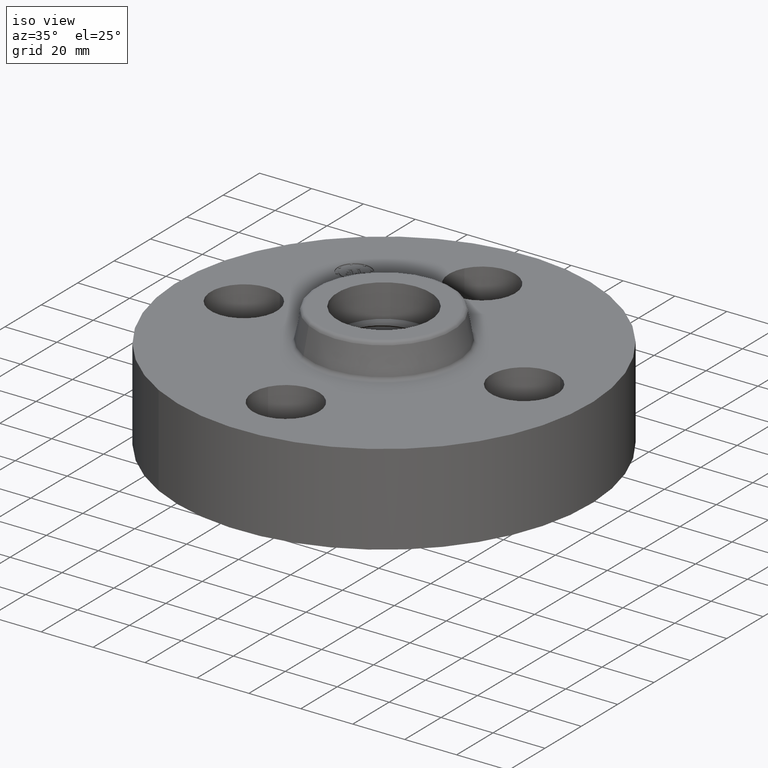
[diagram: clean part render]
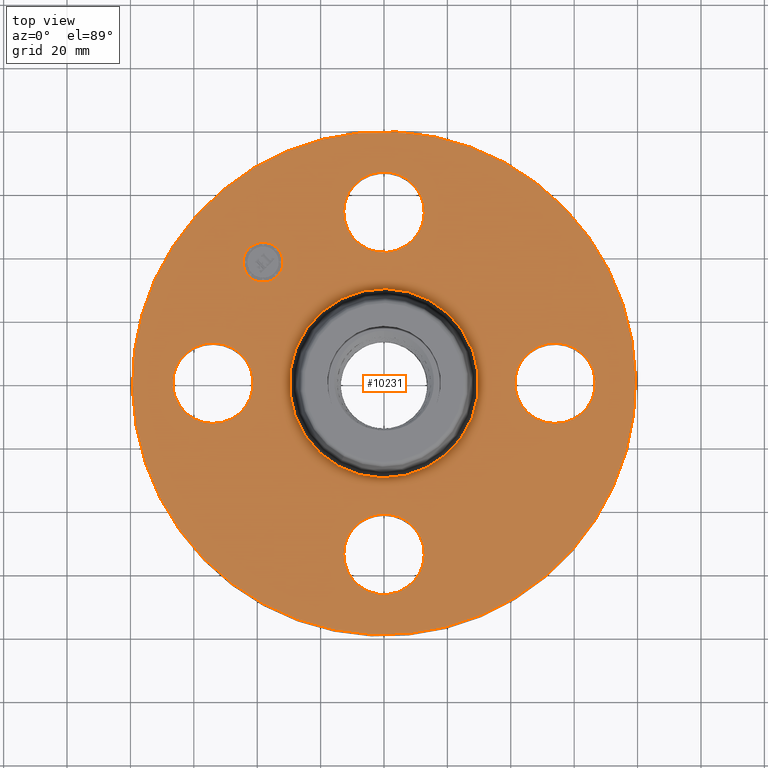
[diagram: tour spotlight — one face highlighted and labeled with its STEP entity id]
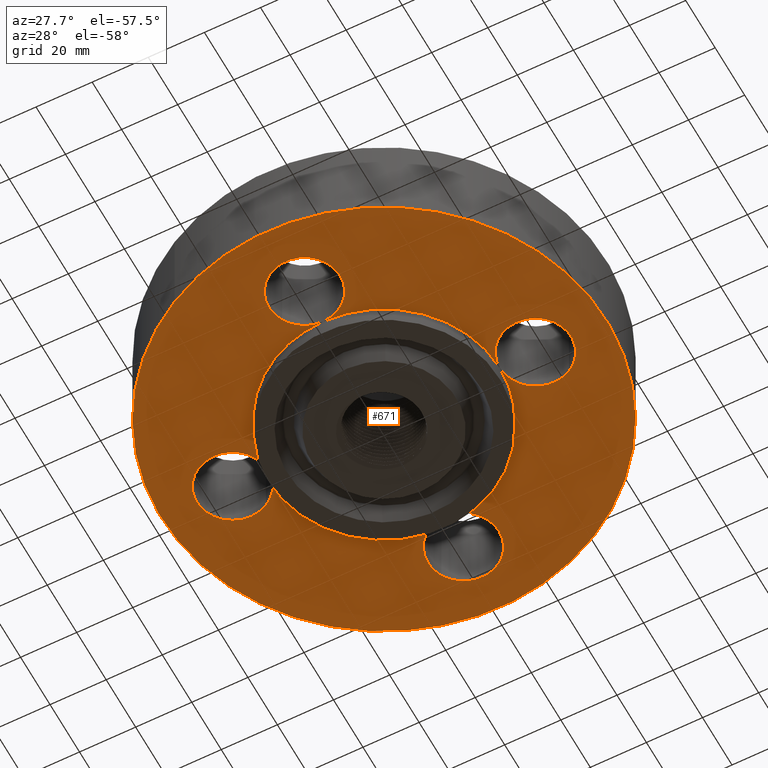
[diagram: tour spotlight — one face highlighted and labeled with its STEP entity id]
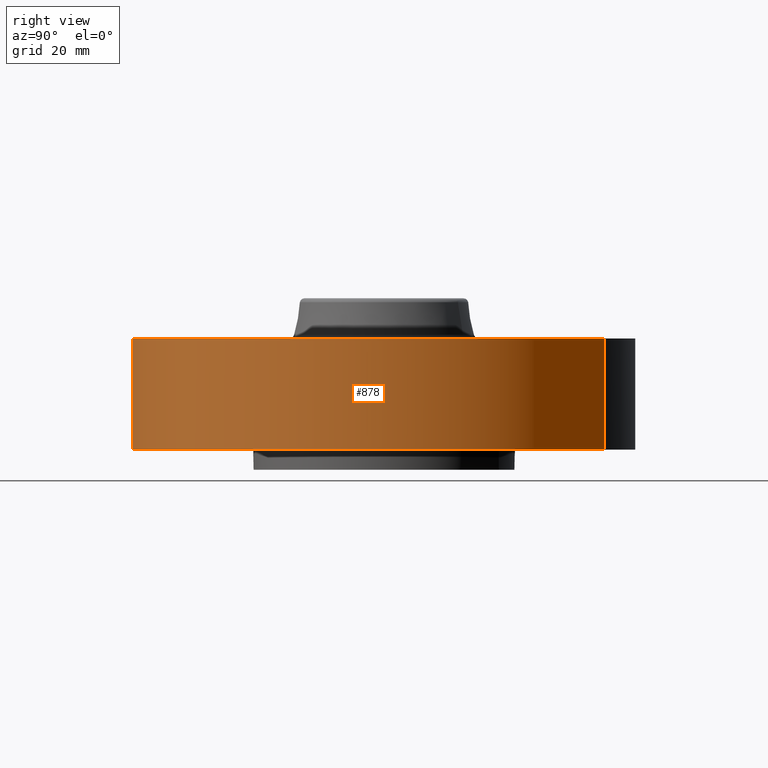
[diagram: tour spotlight — one face highlighted and labeled with its STEP entity id]
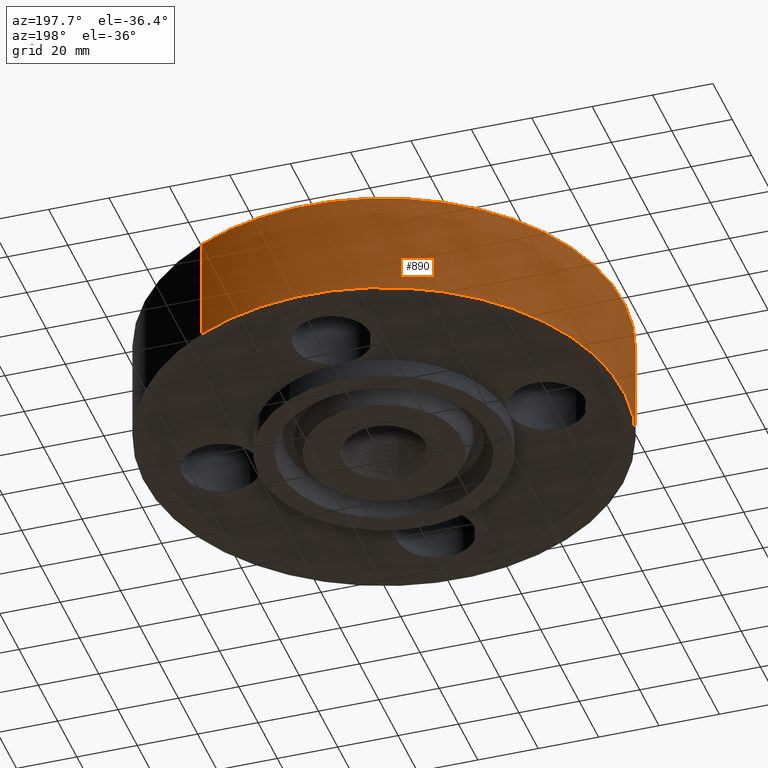
[diagram: tour spotlight — one face highlighted and labeled with its STEP entity id]
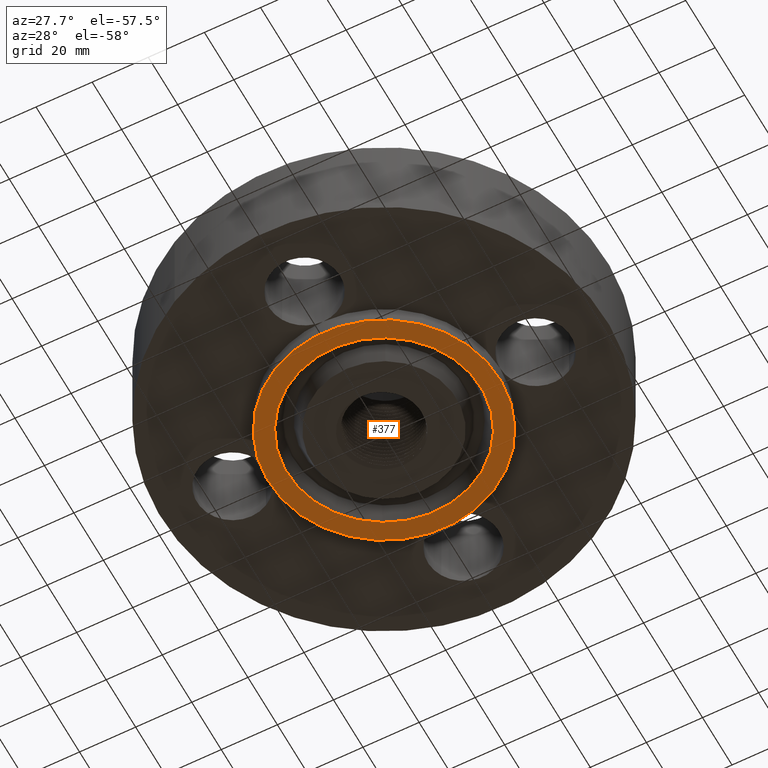
[diagram: tour spotlight — one face highlighted and labeled with its STEP entity id]
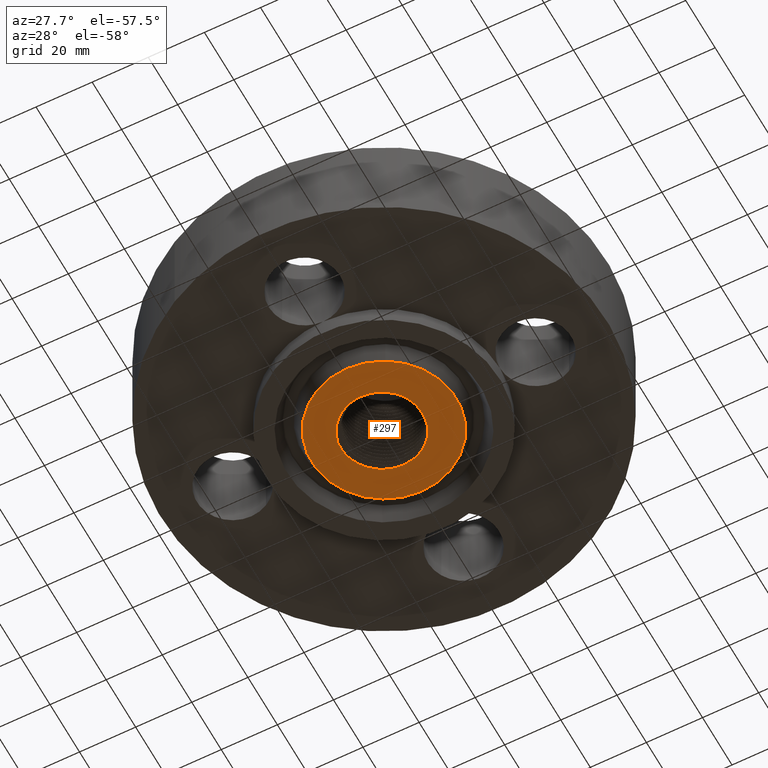
[diagram: tour spotlight — one face highlighted and labeled with its STEP entity id]
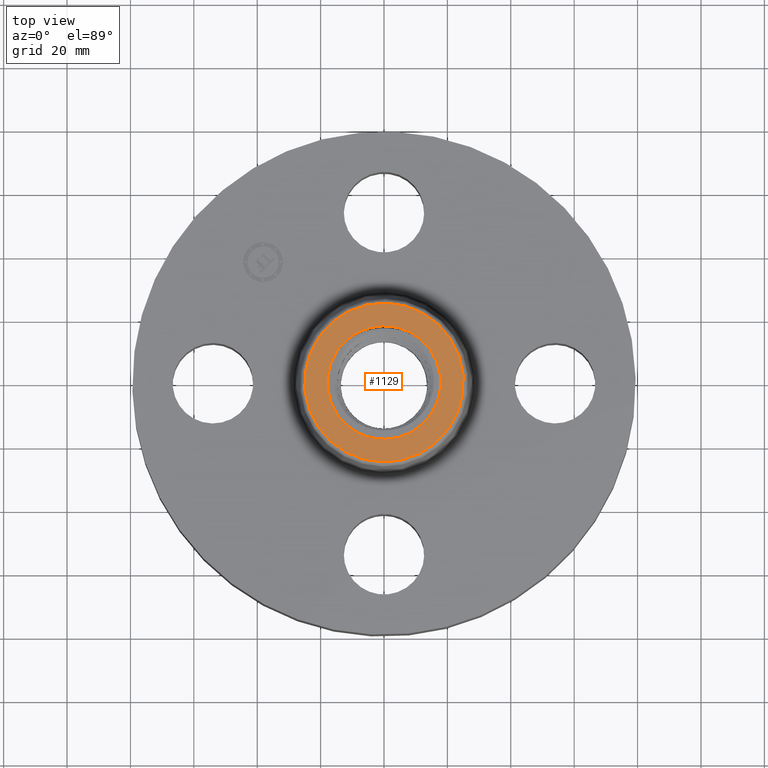
[diagram: tour spotlight — one face highlighted and labeled with its STEP entity id]
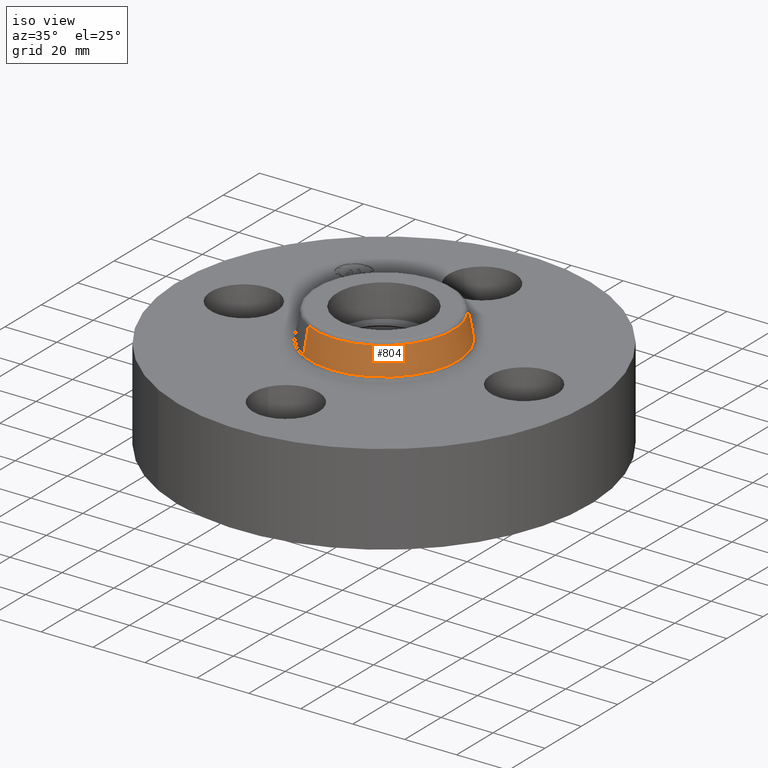
[diagram: tour spotlight — one face highlighted and labeled with its STEP entity id]
A machine part: a face-by-face anatomy tour. The part has 613 B-rep faces; the first image is the clean iso view, then the 8 largest visible faces are spotlighted one at a time (largest first), each with its STEP entity span.

Face 1 — top view, entity #10231. In plain terms, the highlighted planar face has unit normal (0, 0, -1).
Definition (entity closure, byte-faithful):
#415=AXIS2_PLACEMENT_3D('Circle Axis2P3D',#413,#414,$) ;
#433=AXIS2_PLACEMENT_3D('Circle Axis2P3D',#431,#432,$) ;
#480=AXIS2_PLACEMENT_3D('Circle Axis2P3D',#478,#479,$) ;
#498=AXIS2_PLACEMENT_3D('Circle Axis2P3D',#496,#497,$) ;
#545=AXIS2_PLACEMENT_3D('Circle Axis2P3D',#543,#544,$) ;
#563=AXIS2_PLACEMENT_3D('Circle Axis2P3D',#561,#562,$) ;
#812=AXIS2_PLACEMENT_3D('Circle Axis2P3D',#810,#811,$) ;
#838=AXIS2_PLACEMENT_3D('Circle Axis2P3D',#836,#837,$) ;
#862=AXIS2_PLACEMENT_3D('Circle Axis2P3D',#860,#861,$) ;
#881=AXIS2_PLACEMENT_3D('Circle Axis2P3D',#879,#880,$) ;
#912=AXIS2_PLACEMENT_3D('Circle Axis2P3D',#910,#911,$) ;
#925=AXIS2_PLACEMENT_3D('Circle Axis2P3D',#923,#924,$) ;
#10187=AXIS2_PLACEMENT_3D('Plane Axis2P3D',#10184,#10185,#10186) ;
#10215=AXIS2_PLACEMENT_3D('Circle Axis2P3D',#10213,#10214,$) ;
#10224=AXIS2_PLACEMENT_3D('Circle Axis2P3D',#10222,#10223,$) ;
#389=CARTESIAN_POINT('Vertex',(-0.438791280947,-1.88528723071,1.38000000001)) ;
#410=CARTESIAN_POINT('Vertex',(0.438791280947,-2.36471276931,1.38000000001)) ;
#413=CARTESIAN_POINT('Axis2P3D Location',(2.6023744482E-016,-2.12500000001,1.38000000001)) ;
#431=CARTESIAN_POINT('Axis2P3D Location',(2.6023744482E-016,-2.12500000001,1.38000000001)) ;
#454=CARTESIAN_POINT('Vertex',(-1.88528723071,0.438791280947,1.38000000001)) ;
#475=CARTESIAN_POINT('Vertex',(-2.36471276931,-0.438791280947,1.38000000001)) ;
#478=CARTESIAN_POINT('Axis2P3D Location',(-2.12500000001,-1.10614932679E-016,1.38000000001)) ;
#496=CARTESIAN_POINT('Axis2P3D Location',(-2.12500000001,-1.10614932679E-016,1.38000000001)) ;
#519=CARTESIAN_POINT('Vertex',(1.88528723071,-0.438791280947,1.38000000001)) ;
#540=CARTESIAN_POINT('Vertex',(2.36471276931,0.438791280947,1.38000000001)) ;
#543=CARTESIAN_POINT('Axis2P3D Location',(2.12500000001,1.3011872241E-016,1.38000000001)) ;
#561=CARTESIAN_POINT('Axis2P3D Location',(2.12500000001,1.3011872241E-016,1.38000000001)) ;
#810=CARTESIAN_POINT('Axis2P3D Location',(0.,0.,1.38000000001)) ;
#814=CARTESIAN_POINT('Vertex',(-0.563490878489,-1.03146313437,1.38000000001)) ;
#816=CARTESIAN_POINT('Vertex',(0.563490878489,1.03146313437,1.38000000001)) ;
#836=CARTESIAN_POINT('Axis2P3D Location',(0.,0.,1.38000000001)) ;
#857=CARTESIAN_POINT('Vertex',(1.49820480814,2.74244550592,1.38000000001)) ;
#860=CARTESIAN_POINT('Axis2P3D Location',(0.,0.,1.38000000001)) ;
#864=CARTESIAN_POINT('Vertex',(-1.49820480814,-2.74244550592,1.38000000001)) ;
#879=CARTESIAN_POINT('Axis2P3D Location',(0.,0.,1.38000000001)) ;
#900=CARTESIAN_POINT('Vertex',(0.438791280947,1.88528723071,1.38000000001)) ;
#907=CARTESIAN_POINT('Vertex',(-0.438791280947,2.36471276931,1.38000000001)) ;
#910=CARTESIAN_POINT('Axis2P3D Location',(0.,2.12500000001,1.38000000001)) ;
#923=CARTESIAN_POINT('Axis2P3D Location',(0.,2.12500000001,1.38000000001)) ;
#10184=CARTESIAN_POINT('Axis2P3D Location',(0.,3.12500000001,1.38000000001)) ;
#10213=CARTESIAN_POINT('Axis2P3D Location',(-1.50260191003,1.50260191003,1.38000000001)) ;
#10217=CARTESIAN_POINT('Vertex',(-1.67761083837,1.32759298168,1.38000000001)) ;
#10219=CARTESIAN_POINT('Vertex',(-1.32759298168,1.67761083837,1.38000000001)) ;
#10222=CARTESIAN_POINT('Axis2P3D Location',(-1.50260191003,1.50260191003,1.38000000001)) ;
#414=DIRECTION('Axis2P3D Direction',(-0.,0.,-0.0393700787402)) ;
#432=DIRECTION('Axis2P3D Direction',(-0.,0.,-0.0393700787402)) ;
#479=DIRECTION('Axis2P3D Direction',(0.,0.,-0.0393700787402)) ;
#497=DIRECTION('Axis2P3D Direction',(0.,0.,-0.0393700787402)) ;
#544=DIRECTION('Axis2P3D Direction',(0.,-0.,-0.0393700787402)) ;
#562=DIRECTION('Axis2P3D Direction',(0.,-0.,-0.0393700787402)) ;
#811=DIRECTION('Axis2P3D Direction',(0.,0.,-0.0393700787402)) ;
#837=DIRECTION('Axis2P3D Direction',(0.,0.,-0.0393700787402)) ;
#861=DIRECTION('Axis2P3D Direction',(0.,0.,-0.0393700787402)) ;
#880=DIRECTION('Axis2P3D Direction',(0.,0.,-0.0393700787402)) ;
#911=DIRECTION('Axis2P3D Direction',(0.,-0.,-0.0393700787402)) ;
#924=DIRECTION('Axis2P3D Direction',(0.,-0.,-0.0393700787402)) ;
#10185=DIRECTION('Axis2P3D Direction',(0.,0.,-0.0393700787402)) ;
#10186=DIRECTION('Axis2P3D XDirection',(0.0393700787402,0.,0.)) ;
#10214=DIRECTION('Axis2P3D Direction',(0.,0.,-0.0393700787402)) ;
#10223=DIRECTION('Axis2P3D Direction',(0.,0.,-0.0393700787402)) ;
#10190=ORIENTED_EDGE('',*,*,#866,.F.) ;
#10191=ORIENTED_EDGE('',*,*,#883,.F.) ;
#10194=ORIENTED_EDGE('',*,*,#927,.T.) ;
#10195=ORIENTED_EDGE('',*,*,#914,.T.) ;
#10198=ORIENTED_EDGE('',*,*,#818,.T.) ;
#10199=ORIENTED_EDGE('',*,*,#840,.T.) ;
#10202=ORIENTED_EDGE('',*,*,#547,.T.) ;
#10203=ORIENTED_EDGE('',*,*,#565,.T.) ;
#10206=ORIENTED_EDGE('',*,*,#417,.T.) ;
#10207=ORIENTED_EDGE('',*,*,#435,.T.) ;
#10210=ORIENTED_EDGE('',*,*,#482,.T.) ;
#10211=ORIENTED_EDGE('',*,*,#500,.T.) ;
#10228=ORIENTED_EDGE('',*,*,#10221,.T.) ;
#10229=ORIENTED_EDGE('',*,*,#10226,.T.) ;
#10196=FACE_BOUND('',#10193,.T.) ;
#10200=FACE_BOUND('',#10197,.T.) ;
#10204=FACE_BOUND('',#10201,.T.) ;
#10208=FACE_BOUND('',#10205,.T.) ;
#10212=FACE_BOUND('',#10209,.T.) ;
#10230=FACE_BOUND('',#10227,.T.) ;
#10231=ADVANCED_FACE('PartBody',(#10192,#10196,#10200,#10204,#10208,#10212,#10230),#10188,.F.) ;
#416=CIRCLE('generated circle',#415,0.500000000002) ;
#434=CIRCLE('generated circle',#433,0.500000000002) ;
#481=CIRCLE('generated circle',#480,0.500000000002) ;
#499=CIRCLE('generated circle',#498,0.500000000002) ;
#546=CIRCLE('generated circle',#545,0.500000000002) ;
#564=CIRCLE('generated circle',#563,0.500000000002) ;
#813=CIRCLE('generated circle',#812,1.17534597788) ;
#839=CIRCLE('generated circle',#838,1.17534597788) ;
#863=CIRCLE('generated circle',#862,3.12500000001) ;
#882=CIRCLE('generated circle',#881,3.12500000001) ;
#913=CIRCLE('generated circle',#912,0.500000000002) ;
#926=CIRCLE('generated circle',#925,0.500000000002) ;
#10216=CIRCLE('generated circle',#10215,0.247500000001) ;
#10225=CIRCLE('generated circle',#10224,0.247500000001) ;
#417=EDGE_CURVE('',#390,#411,#416,.T.) ;
#435=EDGE_CURVE('',#411,#390,#434,.T.) ;
#482=EDGE_CURVE('',#455,#476,#481,.T.) ;
#500=EDGE_CURVE('',#476,#455,#499,.T.) ;
#547=EDGE_CURVE('',#520,#541,#546,.T.) ;
#565=EDGE_CURVE('',#541,#520,#564,.T.) ;
#818=EDGE_CURVE('',#815,#817,#813,.T.) ;
#840=EDGE_CURVE('',#817,#815,#839,.T.) ;
#866=EDGE_CURVE('',#858,#865,#863,.T.) ;
#883=EDGE_CURVE('',#865,#858,#882,.T.) ;
#914=EDGE_CURVE('',#901,#908,#913,.T.) ;
#927=EDGE_CURVE('',#908,#901,#926,.T.) ;
#10221=EDGE_CURVE('',#10218,#10220,#10216,.T.) ;
#10226=EDGE_CURVE('',#10220,#10218,#10225,.T.) ;
#10189=EDGE_LOOP('',(#10190,#10191)) ;
#10193=EDGE_LOOP('',(#10194,#10195)) ;
#10197=EDGE_LOOP('',(#10198,#10199)) ;
#10201=EDGE_LOOP('',(#10202,#10203)) ;
#10205=EDGE_LOOP('',(#10206,#10207)) ;
#10209=EDGE_LOOP('',(#10210,#10211)) ;
#10227=EDGE_LOOP('',(#10228,#10229)) ;
#10192=FACE_OUTER_BOUND('',#10189,.T.) ;
#10188=PLANE('',#10187) ;
#390=VERTEX_POINT('',#389) ;
#411=VERTEX_POINT('',#410) ;
#455=VERTEX_POINT('',#454) ;
#476=VERTEX_POINT('',#475) ;
#520=VERTEX_POINT('',#519) ;
#541=VERTEX_POINT('',#540) ;
#815=VERTEX_POINT('',#814) ;
#817=VERTEX_POINT('',#816) ;
#858=VERTEX_POINT('',#857) ;
#865=VERTEX_POINT('',#864) ;
#901=VERTEX_POINT('',#900) ;
#908=VERTEX_POINT('',#907) ;
#10218=VERTEX_POINT('',#10217) ;
#10220=VERTEX_POINT('',#10219) ;

Face 2 — auxiliary view, entity #671. In plain terms, the highlighted planar face has unit normal (0, 0, -1).
Definition (entity closure, byte-faithful):
#394=AXIS2_PLACEMENT_3D('Circle Axis2P3D',#392,#393,$) ;
#401=AXIS2_PLACEMENT_3D('Circle Axis2P3D',#399,#400,$) ;
#428=AXIS2_PLACEMENT_3D('Circle Axis2P3D',#426,#427,$) ;
#459=AXIS2_PLACEMENT_3D('Circle Axis2P3D',#457,#458,$) ;
#466=AXIS2_PLACEMENT_3D('Circle Axis2P3D',#464,#465,$) ;
#493=AXIS2_PLACEMENT_3D('Circle Axis2P3D',#491,#492,$) ;
#524=AXIS2_PLACEMENT_3D('Circle Axis2P3D',#522,#523,$) ;
#531=AXIS2_PLACEMENT_3D('Circle Axis2P3D',#529,#530,$) ;
#558=AXIS2_PLACEMENT_3D('Circle Axis2P3D',#556,#557,$) ;
#576=AXIS2_PLACEMENT_3D('Plane Axis2P3D',#573,#574,#575) ;
#580=AXIS2_PLACEMENT_3D('Circle Axis2P3D',#578,#579,$) ;
#589=AXIS2_PLACEMENT_3D('Circle Axis2P3D',#587,#588,$) ;
#598=AXIS2_PLACEMENT_3D('Circle Axis2P3D',#596,#597,$) ;
#603=AXIS2_PLACEMENT_3D('Circle Axis2P3D',#601,#602,$) ;
#610=AXIS2_PLACEMENT_3D('Circle Axis2P3D',#608,#609,$) ;
#617=AXIS2_PLACEMENT_3D('Circle Axis2P3D',#615,#616,$) ;
#624=AXIS2_PLACEMENT_3D('Circle Axis2P3D',#622,#623,$) ;
#631=AXIS2_PLACEMENT_3D('Circle Axis2P3D',#629,#630,$) ;
#636=AXIS2_PLACEMENT_3D('Circle Axis2P3D',#634,#635,$) ;
#641=AXIS2_PLACEMENT_3D('Circle Axis2P3D',#639,#640,$) ;
#648=AXIS2_PLACEMENT_3D('Circle Axis2P3D',#646,#647,$) ;
#387=CARTESIAN_POINT('Vertex',(-0.438791280947,-1.88528723071,0.)) ;
#392=CARTESIAN_POINT('Axis2P3D Location',(2.6023744482E-016,-2.12500000001,0.)) ;
#396=CARTESIAN_POINT('Vertex',(2.05376551774E-016,-1.62500000001,0.)) ;
#399=CARTESIAN_POINT('Axis2P3D Location',(2.6023744482E-016,-2.12500000001,0.)) ;
#403=CARTESIAN_POINT('Vertex',(0.438791280947,-2.36471276931,0.)) ;
#426=CARTESIAN_POINT('Axis2P3D Location',(2.6023744482E-016,-2.12500000001,0.)) ;
#452=CARTESIAN_POINT('Vertex',(-1.88528723071,0.438791280947,0.)) ;
#457=CARTESIAN_POINT('Axis2P3D Location',(-2.12500000001,-1.10614932679E-016,0.)) ;
#461=CARTESIAN_POINT('Vertex',(-1.62500000001,-2.79741234551E-016,0.)) ;
#464=CARTESIAN_POINT('Axis2P3D Location',(-2.12500000001,-1.10614932679E-016,0.)) ;
#468=CARTESIAN_POINT('Vertex',(-2.36471276931,-0.438791280947,0.)) ;
#491=CARTESIAN_POINT('Axis2P3D Location',(-2.12500000001,-1.10614932679E-016,0.)) ;
#517=CARTESIAN_POINT('Vertex',(1.88528723071,-0.438791280947,0.)) ;
#522=CARTESIAN_POINT('Axis2P3D Location',(2.12500000001,1.3011872241E-016,0.)) ;
#526=CARTESIAN_POINT('Vertex',(1.62500000001,2.79741234551E-016,0.)) ;
#529=CARTESIAN_POINT('Axis2P3D Location',(2.12500000001,1.3011872241E-016,0.)) ;
#533=CARTESIAN_POINT('Vertex',(2.36471276931,0.438791280947,0.)) ;
#556=CARTESIAN_POINT('Axis2P3D Location',(2.12500000001,1.3011872241E-016,0.)) ;
#573=CARTESIAN_POINT('Axis2P3D Location',(0.,1.62500000001,0.)) ;
#578=CARTESIAN_POINT('Axis2P3D Location',(0.,0.,0.)) ;
#582=CARTESIAN_POINT('Vertex',(-1.49820480814,-2.74244550592,2.79741234551E-016)) ;
#584=CARTESIAN_POINT('Vertex',(1.49820480814,2.74244550592,2.79741234551E-016)) ;
#587=CARTESIAN_POINT('Axis2P3D Location',(0.,0.,0.)) ;
#596=CARTESIAN_POINT('Axis2P3D Location',(0.,0.,0.)) ;
#601=CARTESIAN_POINT('Axis2P3D Location',(0.,0.,0.)) ;
#605=CARTESIAN_POINT('Vertex',(0.779066500235,1.42607166308,1.39870617276E-016)) ;
#608=CARTESIAN_POINT('Axis2P3D Location',(0.,0.,0.)) ;
#612=CARTESIAN_POINT('Vertex',(2.19006199702E-015,1.62500000001,1.39870617276E-016)) ;
#615=CARTESIAN_POINT('Axis2P3D Location',(0.,2.12500000001,0.)) ;
#619=CARTESIAN_POINT('Vertex',(0.438791280947,1.88528723071,0.)) ;
#622=CARTESIAN_POINT('Axis2P3D Location',(-8.74191357973E-017,2.12500000001,0.)) ;
#626=CARTESIAN_POINT('Vertex',(-0.438791280947,2.36471276931,0.)) ;
#629=CARTESIAN_POINT('Axis2P3D Location',(0.,2.12500000001,0.)) ;
#634=CARTESIAN_POINT('Axis2P3D Location',(0.,0.,0.)) ;
#639=CARTESIAN_POINT('Axis2P3D Location',(0.,0.,0.)) ;
#643=CARTESIAN_POINT('Vertex',(-0.779066500235,-1.42607166308,1.39870617276E-016)) ;
#646=CARTESIAN_POINT('Axis2P3D Location',(0.,0.,0.)) ;
#393=DIRECTION('Axis2P3D Direction',(-0.,0.,-0.0393700787402)) ;
#400=DIRECTION('Axis2P3D Direction',(-0.,0.,-0.0393700787402)) ;
#427=DIRECTION('Axis2P3D Direction',(-0.,0.,-0.0393700787402)) ;
#458=DIRECTION('Axis2P3D Direction',(0.,0.,-0.0393700787402)) ;
#465=DIRECTION('Axis2P3D Direction',(0.,0.,-0.0393700787402)) ;
#492=DIRECTION('Axis2P3D Direction',(0.,0.,-0.0393700787402)) ;
#523=DIRECTION('Axis2P3D Direction',(0.,-0.,-0.0393700787402)) ;
#530=DIRECTION('Axis2P3D Direction',(0.,-0.,-0.0393700787402)) ;
#557=DIRECTION('Axis2P3D Direction',(0.,-0.,-0.0393700787402)) ;
#574=DIRECTION('Axis2P3D Direction',(0.,0.,-0.0393700787402)) ;
#575=DIRECTION('Axis2P3D XDirection',(0.0393700787402,0.,0.)) ;
#579=DIRECTION('Axis2P3D Direction',(0.,0.,-0.0393700787402)) ;
#588=DIRECTION('Axis2P3D Direction',(0.,0.,-0.0393700787402)) ;
#597=DIRECTION('Axis2P3D Direction',(0.,0.,-0.0393700787402)) ;
#602=DIRECTION('Axis2P3D Direction',(0.,0.,-0.0393700787402)) ;
#609=DIRECTION('Axis2P3D Direction',(0.,0.,-0.0393700787402)) ;
#616=DIRECTION('Axis2P3D Direction',(0.,0.,-0.0393700787402)) ;
#623=DIRECTION('Axis2P3D Direction',(0.,0.,-0.0393700787402)) ;
#630=DIRECTION('Axis2P3D Direction',(0.,0.,-0.0393700787402)) ;
#635=DIRECTION('Axis2P3D Direction',(0.,0.,-0.0393700787402)) ;
#640=DIRECTION('Axis2P3D Direction',(0.,0.,-0.0393700787402)) ;
#647=DIRECTION('Axis2P3D Direction',(0.,0.,-0.0393700787402)) ;
#593=ORIENTED_EDGE('',*,*,#586,.T.) ;
#594=ORIENTED_EDGE('',*,*,#591,.T.) ;
#652=ORIENTED_EDGE('',*,*,#398,.F.) ;
#653=ORIENTED_EDGE('',*,*,#430,.F.) ;
#654=ORIENTED_EDGE('',*,*,#405,.F.) ;
#655=ORIENTED_EDGE('',*,*,#600,.F.) ;
#656=ORIENTED_EDGE('',*,*,#528,.F.) ;
#657=ORIENTED_EDGE('',*,*,#560,.F.) ;
#658=ORIENTED_EDGE('',*,*,#535,.F.) ;
#659=ORIENTED_EDGE('',*,*,#607,.F.) ;
#660=ORIENTED_EDGE('',*,*,#614,.F.) ;
#661=ORIENTED_EDGE('',*,*,#621,.F.) ;
#662=ORIENTED_EDGE('',*,*,#628,.F.) ;
#663=ORIENTED_EDGE('',*,*,#633,.F.) ;
#664=ORIENTED_EDGE('',*,*,#638,.F.) ;
#665=ORIENTED_EDGE('',*,*,#463,.F.) ;
#666=ORIENTED_EDGE('',*,*,#495,.F.) ;
#667=ORIENTED_EDGE('',*,*,#470,.F.) ;
#668=ORIENTED_EDGE('',*,*,#645,.F.) ;
#669=ORIENTED_EDGE('',*,*,#650,.F.) ;
#670=FACE_BOUND('',#651,.T.) ;
#671=ADVANCED_FACE('PartBody',(#595,#670),#577,.T.) ;
#395=CIRCLE('generated circle',#394,0.500000000002) ;
#402=CIRCLE('generated circle',#401,0.500000000002) ;
#429=CIRCLE('generated circle',#428,0.500000000002) ;
#460=CIRCLE('generated circle',#459,0.500000000002) ;
#467=CIRCLE('generated circle',#466,0.500000000002) ;
#494=CIRCLE('generated circle',#493,0.500000000002) ;
#525=CIRCLE('generated circle',#524,0.500000000002) ;
#532=CIRCLE('generated circle',#531,0.500000000002) ;
#559=CIRCLE('generated circle',#558,0.500000000002) ;
#581=CIRCLE('generated circle',#580,3.12500000001) ;
#590=CIRCLE('generated circle',#589,3.12500000001) ;
#599=CIRCLE('generated circle',#598,1.62500000001) ;
#604=CIRCLE('generated circle',#603,1.62500000001) ;
#611=CIRCLE('generated circle',#610,1.62500000001) ;
#618=CIRCLE('generated circle',#617,0.500000000002) ;
#625=CIRCLE('generated circle',#624,0.500000000002) ;
#632=CIRCLE('generated circle',#631,0.500000000002) ;
#637=CIRCLE('generated circle',#636,1.62500000001) ;
#642=CIRCLE('generated circle',#641,1.62500000001) ;
#649=CIRCLE('generated circle',#648,1.62500000001) ;
#398=EDGE_CURVE('',#388,#397,#395,.T.) ;
#405=EDGE_CURVE('',#397,#404,#402,.T.) ;
#430=EDGE_CURVE('',#404,#388,#429,.T.) ;
#463=EDGE_CURVE('',#453,#462,#460,.T.) ;
#470=EDGE_CURVE('',#462,#469,#467,.T.) ;
#495=EDGE_CURVE('',#469,#453,#494,.T.) ;
#528=EDGE_CURVE('',#518,#527,#525,.T.) ;
#535=EDGE_CURVE('',#527,#534,#532,.T.) ;
#560=EDGE_CURVE('',#534,#518,#559,.T.) ;
#586=EDGE_CURVE('',#583,#585,#581,.T.) ;
#591=EDGE_CURVE('',#585,#583,#590,.T.) ;
#600=EDGE_CURVE('',#527,#397,#599,.T.) ;
#607=EDGE_CURVE('',#606,#527,#604,.T.) ;
#614=EDGE_CURVE('',#613,#606,#611,.T.) ;
#621=EDGE_CURVE('',#620,#613,#618,.T.) ;
#628=EDGE_CURVE('',#627,#620,#625,.T.) ;
#633=EDGE_CURVE('',#613,#627,#632,.T.) ;
#638=EDGE_CURVE('',#462,#613,#637,.T.) ;
#645=EDGE_CURVE('',#644,#462,#642,.T.) ;
#650=EDGE_CURVE('',#397,#644,#649,.T.) ;
#592=EDGE_LOOP('',(#593,#594)) ;
#651=EDGE_LOOP('',(#652,#653,#654,#655,#656,#657,#658,#659,#660,#661,#662,#663,#664,#665,#666,#667,#668,#669)) ;
#595=FACE_OUTER_BOUND('',#592,.T.) ;
#577=PLANE('',#576) ;
#388=VERTEX_POINT('',#387) ;
#397=VERTEX_POINT('',#396) ;
#404=VERTEX_POINT('',#403) ;
#453=VERTEX_POINT('',#452) ;
#462=VERTEX_POINT('',#461) ;
#469=VERTEX_POINT('',#468) ;
#518=VERTEX_POINT('',#517) ;
#527=VERTEX_POINT('',#526) ;
#534=VERTEX_POINT('',#533) ;
#583=VERTEX_POINT('',#582) ;
#585=VERTEX_POINT('',#584) ;
#606=VERTEX_POINT('',#605) ;
#613=VERTEX_POINT('',#612) ;
#620=VERTEX_POINT('',#619) ;
#627=VERTEX_POINT('',#626) ;
#644=VERTEX_POINT('',#643) ;

Face 3 — right view, entity #878. In plain terms, the highlighted cylindrical surface (partial cylindrical patch) has radius 79.375 mm, axis along (0, 0, -1).
Definition (entity closure, byte-faithful):
#589=AXIS2_PLACEMENT_3D('Circle Axis2P3D',#587,#588,$) ;
#851=AXIS2_PLACEMENT_3D('Cylinder Axis2P3D',#848,#849,#850) ;
#862=AXIS2_PLACEMENT_3D('Circle Axis2P3D',#860,#861,$) ;
#582=CARTESIAN_POINT('Vertex',(-1.49820480814,-2.74244550592,2.79741234551E-016)) ;
#584=CARTESIAN_POINT('Vertex',(1.49820480814,2.74244550592,2.79741234551E-016)) ;
#587=CARTESIAN_POINT('Axis2P3D Location',(0.,0.,0.)) ;
#848=CARTESIAN_POINT('Axis2P3D Location',(0.,0.,0.815000000003)) ;
#853=CARTESIAN_POINT('Line Origine',(1.49820480814,2.74244550592,0.690000000003)) ;
#857=CARTESIAN_POINT('Vertex',(1.49820480814,2.74244550592,1.38000000001)) ;
#860=CARTESIAN_POINT('Axis2P3D Location',(0.,0.,1.38000000001)) ;
#864=CARTESIAN_POINT('Vertex',(-1.49820480814,-2.74244550592,1.38000000001)) ;
#867=CARTESIAN_POINT('Line Origine',(-1.49820480814,-2.74244550592,0.690000000003)) ;
#588=DIRECTION('Axis2P3D Direction',(0.,0.,-0.0393700787402)) ;
#849=DIRECTION('Axis2P3D Direction',(0.,0.,-0.0393700787402)) ;
#850=DIRECTION('Axis2P3D XDirection',(-0.0188750212049,-0.0345504945626,0.)) ;
#854=DIRECTION('Vector Direction',(0.,0.,-0.0393700787402)) ;
#861=DIRECTION('Axis2P3D Direction',(0.,0.,-0.0393700787402)) ;
#868=DIRECTION('Vector Direction',(0.,0.,-0.0393700787402)) ;
#855=VECTOR('Line Direction',#854,0.0393700787402) ;
#869=VECTOR('Line Direction',#868,0.0393700787402) ;
#873=ORIENTED_EDGE('',*,*,#591,.F.) ;
#874=ORIENTED_EDGE('',*,*,#859,.T.) ;
#875=ORIENTED_EDGE('',*,*,#866,.T.) ;
#876=ORIENTED_EDGE('',*,*,#871,.F.) ;
#878=ADVANCED_FACE('PartBody',(#877),#852,.T.) ;
#590=CIRCLE('generated circle',#589,3.12500000001) ;
#863=CIRCLE('generated circle',#862,3.12500000001) ;
#852=CYLINDRICAL_SURFACE('generated cylinder',#851,3.12500000001) ;
#591=EDGE_CURVE('',#585,#583,#590,.T.) ;
#859=EDGE_CURVE('',#585,#858,#856,.F.) ;
#866=EDGE_CURVE('',#858,#865,#863,.T.) ;
#871=EDGE_CURVE('',#583,#865,#870,.F.) ;
#872=EDGE_LOOP('',(#873,#874,#875,#876)) ;
#877=FACE_OUTER_BOUND('',#872,.T.) ;
#856=LINE('Line',#853,#855) ;
#870=LINE('Line',#867,#869) ;
#583=VERTEX_POINT('',#582) ;
#585=VERTEX_POINT('',#584) ;
#858=VERTEX_POINT('',#857) ;
#865=VERTEX_POINT('',#864) ;

Face 4 — auxiliary view, entity #890. In plain terms, the highlighted cylindrical surface (partial cylindrical patch) has radius 79.375 mm, axis along (0, 0, -1).
Definition (entity closure, byte-faithful):
#580=AXIS2_PLACEMENT_3D('Circle Axis2P3D',#578,#579,$) ;
#851=AXIS2_PLACEMENT_3D('Cylinder Axis2P3D',#848,#849,#850) ;
#881=AXIS2_PLACEMENT_3D('Circle Axis2P3D',#879,#880,$) ;
#578=CARTESIAN_POINT('Axis2P3D Location',(0.,0.,0.)) ;
#582=CARTESIAN_POINT('Vertex',(-1.49820480814,-2.74244550592,2.79741234551E-016)) ;
#584=CARTESIAN_POINT('Vertex',(1.49820480814,2.74244550592,2.79741234551E-016)) ;
#848=CARTESIAN_POINT('Axis2P3D Location',(0.,0.,0.815000000003)) ;
#853=CARTESIAN_POINT('Line Origine',(1.49820480814,2.74244550592,0.690000000003)) ;
#857=CARTESIAN_POINT('Vertex',(1.49820480814,2.74244550592,1.38000000001)) ;
#864=CARTESIAN_POINT('Vertex',(-1.49820480814,-2.74244550592,1.38000000001)) ;
#867=CARTESIAN_POINT('Line Origine',(-1.49820480814,-2.74244550592,0.690000000003)) ;
#879=CARTESIAN_POINT('Axis2P3D Location',(0.,0.,1.38000000001)) ;
#579=DIRECTION('Axis2P3D Direction',(0.,0.,-0.0393700787402)) ;
#849=DIRECTION('Axis2P3D Direction',(0.,0.,-0.0393700787402)) ;
#850=DIRECTION('Axis2P3D XDirection',(-0.0188750212049,-0.0345504945626,0.)) ;
#854=DIRECTION('Vector Direction',(0.,0.,-0.0393700787402)) ;
#868=DIRECTION('Vector Direction',(0.,0.,-0.0393700787402)) ;
#880=DIRECTION('Axis2P3D Direction',(0.,0.,-0.0393700787402)) ;
#855=VECTOR('Line Direction',#854,0.0393700787402) ;
#869=VECTOR('Line Direction',#868,0.0393700787402) ;
#885=ORIENTED_EDGE('',*,*,#586,.F.) ;
#886=ORIENTED_EDGE('',*,*,#871,.T.) ;
#887=ORIENTED_EDGE('',*,*,#883,.T.) ;
#888=ORIENTED_EDGE('',*,*,#859,.F.) ;
#890=ADVANCED_FACE('PartBody',(#889),#852,.T.) ;
#581=CIRCLE('generated circle',#580,3.12500000001) ;
#882=CIRCLE('generated circle',#881,3.12500000001) ;
#852=CYLINDRICAL_SURFACE('generated cylinder',#851,3.12500000001) ;
#586=EDGE_CURVE('',#583,#585,#581,.T.) ;
#859=EDGE_CURVE('',#585,#858,#856,.F.) ;
#871=EDGE_CURVE('',#583,#865,#870,.F.) ;
#883=EDGE_CURVE('',#865,#858,#882,.T.) ;
#884=EDGE_LOOP('',(#885,#886,#887,#888)) ;
#889=FACE_OUTER_BOUND('',#884,.T.) ;
#856=LINE('Line',#853,#855) ;
#870=LINE('Line',#867,#869) ;
#583=VERTEX_POINT('',#582) ;
#585=VERTEX_POINT('',#584) ;
#858=VERTEX_POINT('',#857) ;
#865=VERTEX_POINT('',#864) ;

Face 5 — auxiliary view, entity #377. In plain terms, the highlighted planar face has unit normal (0, 0, -1).
Definition (entity closure, byte-faithful):
#168=AXIS2_PLACEMENT_3D('Plane Axis2P3D',#165,#166,#167) ;
#343=AXIS2_PLACEMENT_3D('Circle Axis2P3D',#341,#342,$) ;
#352=AXIS2_PLACEMENT_3D('Circle Axis2P3D',#350,#351,$) ;
#361=AXIS2_PLACEMENT_3D('Circle Axis2P3D',#359,#360,$) ;
#370=AXIS2_PLACEMENT_3D('Circle Axis2P3D',#368,#369,$) ;
#165=CARTESIAN_POINT('Axis2P3D Location',(0.,0.,-0.250000000001)) ;
#341=CARTESIAN_POINT('Axis2P3D Location',(0.,0.,-0.250000000001)) ;
#345=CARTESIAN_POINT('Vertex',(0.779066500235,1.42607166308,-0.250000000001)) ;
#347=CARTESIAN_POINT('Vertex',(-0.779066500235,-1.42607166308,-0.250000000001)) ;
#350=CARTESIAN_POINT('Axis2P3D Location',(0.,0.,-0.250000000001)) ;
#359=CARTESIAN_POINT('Axis2P3D Location',(-6.99353086378E-017,1.39870617276E-016,-0.250000000001)) ;
#363=CARTESIAN_POINT('Vertex',(0.651779019735,-1.19307349289,-0.250000000001)) ;
#365=CARTESIAN_POINT('Vertex',(-0.651779019735,1.19307349289,-0.250000000001)) ;
#368=CARTESIAN_POINT('Axis2P3D Location',(-6.99353086378E-017,-2.79741234551E-016,-0.250000000001)) ;
#166=DIRECTION('Axis2P3D Direction',(0.,0.,-0.0393700787402)) ;
#167=DIRECTION('Axis2P3D XDirection',(0.0393700787402,0.,0.)) ;
#342=DIRECTION('Axis2P3D Direction',(0.,0.,-0.0393700787402)) ;
#351=DIRECTION('Axis2P3D Direction',(0.,0.,-0.0393700787402)) ;
#360=DIRECTION('Axis2P3D Direction',(0.,0.,-0.0393700787402)) ;
#369=DIRECTION('Axis2P3D Direction',(0.,0.,-0.0393700787402)) ;
#356=ORIENTED_EDGE('',*,*,#349,.T.) ;
#357=ORIENTED_EDGE('',*,*,#354,.T.) ;
#374=ORIENTED_EDGE('',*,*,#367,.F.) ;
#375=ORIENTED_EDGE('',*,*,#372,.F.) ;
#376=FACE_BOUND('',#373,.T.) ;
#377=ADVANCED_FACE('PartBody',(#358,#376),#169,.T.) ;
#344=CIRCLE('generated circle',#343,1.62500000001) ;
#353=CIRCLE('generated circle',#352,1.62500000001) ;
#362=CIRCLE('generated circle',#361,1.35950000001) ;
#371=CIRCLE('generated circle',#370,1.35950000001) ;
#349=EDGE_CURVE('',#346,#348,#344,.T.) ;
#354=EDGE_CURVE('',#348,#346,#353,.T.) ;
#367=EDGE_CURVE('',#364,#366,#362,.T.) ;
#372=EDGE_CURVE('',#366,#364,#371,.T.) ;
#355=EDGE_LOOP('',(#356,#357)) ;
#373=EDGE_LOOP('',(#374,#375)) ;
#358=FACE_OUTER_BOUND('',#355,.T.) ;
#169=PLANE('',#168) ;
#346=VERTEX_POINT('',#345) ;
#348=VERTEX_POINT('',#347) ;
#364=VERTEX_POINT('',#363) ;
#366=VERTEX_POINT('',#365) ;

Face 6 — auxiliary view, entity #297. In plain terms, the highlighted planar face has unit normal (0, 0, -1).
Definition (entity closure, byte-faithful):
#168=AXIS2_PLACEMENT_3D('Plane Axis2P3D',#165,#166,#167) ;
#172=AXIS2_PLACEMENT_3D('Circle Axis2P3D',#170,#171,$) ;
#181=AXIS2_PLACEMENT_3D('Circle Axis2P3D',#179,#180,$) ;
#285=AXIS2_PLACEMENT_3D('Circle Axis2P3D',#283,#284,$) ;
#165=CARTESIAN_POINT('Axis2P3D Location',(0.,0.,-0.250000000001)) ;
#170=CARTESIAN_POINT('Axis2P3D Location',(4.19611851827E-016,-1.39870617276E-016,-0.250000000001)) ;
#174=CARTESIAN_POINT('Vertex',(-0.486856634455,0.891185091603,-0.250000000001)) ;
#176=CARTESIAN_POINT('Vertex',(0.486856634455,-0.891185091603,-0.250000000001)) ;
#179=CARTESIAN_POINT('Axis2P3D Location',(0.,-6.99353086378E-017,-0.250000000001)) ;
#189=CARTESIAN_POINT('Control Point',(4.87298111963E-005,0.566629327253,-0.250000000001)) ;
#190=CARTESIAN_POINT('Control Point',(0.0488553526845,0.564796087585,-0.250000000001)) ;
#191=CARTESIAN_POINT('Control Point',(0.0973675059089,0.557704147717,-0.250000000001)) ;
#192=CARTESIAN_POINT('Control Point',(0.144819643899,0.545395814735,-0.250000000001)) ;
#193=CARTESIAN_POINT('Control Point',(0.245258686716,0.507301353517,-0.250000000001)) ;
#194=CARTESIAN_POINT('Control Point',(0.333689398885,0.446726085595,-0.250000000001)) ;
#195=CARTESIAN_POINT('Control Point',(0.377206029877,0.40760344646,-0.250000000001)) ;
#196=CARTESIAN_POINT('Control Point',(0.440168030715,0.333840108976,-0.250000000001)) ;
#197=CARTESIAN_POINT('Control Point',(0.485247777132,0.248930454362,-0.250000000001)) ;
#198=CARTESIAN_POINT('Control Point',(0.50020826307,0.213520089725,-0.250000000001)) ;
#199=CARTESIAN_POINT('Control Point',(0.518203665693,0.157587995354,-0.250000000001)) ;
#200=CARTESIAN_POINT('Control Point',(0.528436240947,0.100057544641,-0.250000000001)) ;
#201=CARTESIAN_POINT('Control Point',(0.531043276488,0.0799214588297,-0.250000000001)) ;
#202=CARTESIAN_POINT('Control Point',(0.53269324997,0.059713430097,-0.250000000001)) ;
#203=CARTESIAN_POINT('Control Point',(0.53338568557,0.0394936996668,-0.250000000001)) ;
#204=CARTESIAN_POINT('Vertex',(4.87298111957E-005,0.566629327253,-0.250000000001)) ;
#206=CARTESIAN_POINT('Vertex',(0.533386201426,0.0394938991547,-0.250000343209)) ;
#210=CARTESIAN_POINT('Control Point',(-0.276716128162,0.506598897193,-0.250000000001)) ;
#211=CARTESIAN_POINT('Control Point',(-0.230361924537,0.529748312099,-0.250000000001)) ;
#212=CARTESIAN_POINT('Control Point',(-0.181500770083,0.54764724097,-0.250000000001)) ;
#213=CARTESIAN_POINT('Control Point',(-0.130903293706,0.559920674539,-0.250000000001)) ;
#214=CARTESIAN_POINT('Control Point',(-0.0738408806539,0.567070633107,-0.250000000001)) ;
#215=CARTESIAN_POINT('Control Point',(-0.0168253675924,0.567053403181,-0.250000000001)) ;
#216=CARTESIAN_POINT('Control Point',(-0.0111965587398,0.566981825803,-0.250000000001)) ;
#217=CARTESIAN_POINT('Control Point',(-0.00557195678076,0.566840447481,-0.250000000001)) ;
#218=CARTESIAN_POINT('Control Point',(4.87298111957E-005,0.566629327253,-0.250000000001)) ;
#219=CARTESIAN_POINT('Vertex',(-0.276716128162,0.506598897193,-0.250000000001)) ;
#223=CARTESIAN_POINT('Control Point',(-0.594957868309,-0.101655708065,-0.250000000001)) ;
#224=CARTESIAN_POINT('Control Point',(-0.601695193219,-0.0517024911467,-0.250000000001)) ;
#225=CARTESIAN_POINT('Control Point',(-0.603203007869,-0.0011342437935,-0.250000000001)) ;
#226=CARTESIAN_POINT('Control Point',(-0.599393180871,0.0493168808353,-0.250000000001)) ;
#227=CARTESIAN_POINT('Control Point',(-0.579469987973,0.158394478695,-0.250000000001)) ;
#228=CARTESIAN_POINT('Control Point',(-0.53521880781,0.259872765124,-0.250000000001)) ;
#229=CARTESIAN_POINT('Control Point',(-0.504219361115,0.311752736925,-0.250000000001)) ;
#230=CARTESIAN_POINT('Control Point',(-0.444190194772,0.388102794646,-0.250000000001)) ;
#231=CARTESIAN_POINT('Control Point',(-0.370487849783,0.450122525856,-0.250000000001)) ;
#232=CARTESIAN_POINT('Control Point',(-0.34065390585,0.471454380364,-0.250000000001)) ;
#233=CARTESIAN_POINT('Control Point',(-0.309304535637,0.490324158311,-0.250000000001)) ;
#234=CARTESIAN_POINT('Control Point',(-0.276716128162,0.506598897193,-0.250000000001)) ;
#235=CARTESIAN_POINT('Vertex',(-0.594957868309,-0.101655708065,-0.250000000001)) ;
#239=CARTESIAN_POINT('Control Point',(-0.594957868309,-0.101655708065,-0.250000000001)) ;
#240=CARTESIAN_POINT('Control Point',(-0.588710138748,-0.131241133981,-0.250000000001)) ;
#241=CARTESIAN_POINT('Control Point',(-0.580615397754,-0.160401956635,-0.250000000001)) ;
#242=CARTESIAN_POINT('Control Point',(-0.570709070198,-0.188981306577,-0.250000000001)) ;
#243=CARTESIAN_POINT('Control Point',(-0.539605753348,-0.263249725081,-0.250000000001)) ;
#244=CARTESIAN_POINT('Control Point',(-0.496540263313,-0.331294917771,-0.250000000001)) ;
#245=CARTESIAN_POINT('Control Point',(-0.465289109029,-0.370739922188,-0.250000000001)) ;
#246=CARTESIAN_POINT('Control Point',(-0.388067115721,-0.449447440003,-0.250000000001)) ;
#247=CARTESIAN_POINT('Control Point',(-0.295025270371,-0.508173030377,-0.250000000001)) ;
#248=CARTESIAN_POINT('Control Point',(-0.240563792642,-0.533468448874,-0.250000000001)) ;
#249=CARTESIAN_POINT('Control Point',(-0.159269492329,-0.559174862424,-0.250000000001)) ;
#250=CARTESIAN_POINT('Control Point',(-0.0755148379414,-0.569612119505,-0.250000000001)) ;
#251=CARTESIAN_POINT('Control Point',(-0.0503132696805,-0.571351978279,-0.250000000001)) ;
#252=CARTESIAN_POINT('Control Point',(-0.0250944544298,-0.571700803699,-0.250000000001)) ;
#253=CARTESIAN_POINT('Control Point',(3.83051686224E-005,-0.570664884892,-0.250000000001)) ;
#254=CARTESIAN_POINT('Vertex',(3.83051686224E-005,-0.570664884892,-0.250000000001)) ;
#258=CARTESIAN_POINT('Control Point',(3.83051686223E-005,-0.570664884892,-0.250000000001)) ;
#259=CARTESIAN_POINT('Control Point',(0.056815570472,-0.568324647215,-0.250000000001)) ;
#260=CARTESIAN_POINT('Control Point',(0.113154681029,-0.558917447183,-0.250000000001)) ;
#261=CARTESIAN_POINT('Control Point',(0.167900611426,-0.542507130536,-0.250000000001)) ;
#262=CARTESIAN_POINT('Control Point',(0.219846082169,-0.519481829774,-0.250000000001)) ;
#263=CARTESIAN_POINT('Control Point',(0.268007859203,-0.490475610248,-0.250000000001)) ;
#264=CARTESIAN_POINT('Vertex',(0.268007859203,-0.490475610248,-0.250000000001)) ;
#268=CARTESIAN_POINT('Control Point',(0.268007859203,-0.490475610248,-0.250000000001)) ;
#269=CARTESIAN_POINT('Control Point',(0.309561360444,-0.465449333343,-0.250000000001)) ;
#270=CARTESIAN_POINT('Control Point',(0.348299296584,-0.435970298448,-0.250000000001)) ;
#271=CARTESIAN_POINT('Control Point',(0.38356894692,-0.402452605419,-0.250000000001)) ;
#272=CARTESIAN_POINT('Control Point',(0.452354163711,-0.321009032196,-0.250000000001)) ;
#273=CARTESIAN_POINT('Control Point',(0.499670014003,-0.225837362819,-0.250000000001)) ;
#274=CARTESIAN_POINT('Control Point',(0.518388757615,-0.170927298326,-0.250000000001)) ;
#275=CARTESIAN_POINT('Control Point',(0.530893688949,-0.10776522736,-0.250000000001)) ;
#276=CARTESIAN_POINT('Control Point',(0.533954674696,-0.0442116876155,-0.250000000001)) ;
#277=CARTESIAN_POINT('Control Point',(0.534171426412,-0.0375639311104,-0.250000000001)) ;
#278=CARTESIAN_POINT('Control Point',(0.534284787578,-0.0309186710846,-0.250000000001)) ;
#279=CARTESIAN_POINT('Control Point',(0.534294901039,-0.0242755469083,-0.250000000001)) ;
#280=CARTESIAN_POINT('Vertex',(0.534295163249,-0.0242755642808,-0.2499998481)) ;
#283=CARTESIAN_POINT('Axis2P3D Location',(-6.99353086378E-017,-3.49676543189E-017,-0.250000000001)) ;
#166=DIRECTION('Axis2P3D Direction',(0.,0.,-0.0393700787402)) ;
#167=DIRECTION('Axis2P3D XDirection',(0.0393700787402,0.,0.)) ;
#171=DIRECTION('Axis2P3D Direction',(0.,0.,-0.0393700787402)) ;
#180=DIRECTION('Axis2P3D Direction',(0.,0.,-0.0393700787402)) ;
#284=DIRECTION('Axis2P3D Direction',(0.,0.,-0.0393700787402)) ;
#185=ORIENTED_EDGE('',*,*,#178,.T.) ;
#186=ORIENTED_EDGE('',*,*,#183,.T.) ;
#289=ORIENTED_EDGE('',*,*,#208,.F.) ;
#290=ORIENTED_EDGE('',*,*,#221,.F.) ;
#291=ORIENTED_EDGE('',*,*,#237,.F.) ;
#292=ORIENTED_EDGE('',*,*,#256,.T.) ;
#293=ORIENTED_EDGE('',*,*,#266,.T.) ;
#294=ORIENTED_EDGE('',*,*,#282,.T.) ;
#295=ORIENTED_EDGE('',*,*,#287,.F.) ;
#296=FACE_BOUND('',#288,.T.) ;
#297=ADVANCED_FACE('PartBody',(#187,#296),#169,.T.) ;
#188=B_SPLINE_CURVE_WITH_KNOTS('',5,(#189,#190,#191,#192,#193,#194,#195,#196,#197,#198,#199,#200,#201,#202,#203),.UNSPECIFIED.,.F.,.U.,(6,3,3,3,6),(0.,8.7920978585,19.3482047624,26.38459104,30.1349753669),.UNSPECIFIED.) ;
#209=B_SPLINE_CURVE_WITH_KNOTS('',5,(#210,#211,#212,#213,#214,#215,#216,#217,#218),.UNSPECIFIED.,.F.,.U.,(6,3,6),(0.,9.24320905643,10.2557279245),.UNSPECIFIED.) ;
#222=B_SPLINE_CURVE_WITH_KNOTS('',5,(#223,#224,#225,#226,#227,#228,#229,#230,#231,#232,#233,#234),.UNSPECIFIED.,.F.,.U.,(6,3,3,6),(0.,8.80525588433,19.3710092235,25.8692648105),.UNSPECIFIED.) ;
#238=B_SPLINE_CURVE_WITH_KNOTS('',5,(#239,#240,#241,#242,#243,#244,#245,#246,#247,#248,#249,#250,#251,#252,#253),.UNSPECIFIED.,.F.,.U.,(6,3,3,3,6),(0.,5.282389596,14.0882908922,24.6563204026,29.1738786306),.UNSPECIFIED.) ;
#257=B_SPLINE_CURVE_WITH_KNOTS('',5,(#258,#259,#260,#261,#262,#263),.UNSPECIFIED.,.F.,.U.,(6,6),(0.,10.2055884864),.UNSPECIFIED.) ;
#267=B_SPLINE_CURVE_WITH_KNOTS('',5,(#268,#269,#270,#271,#272,#273,#274,#275,#276,#277,#278,#279),.UNSPECIFIED.,.F.,.U.,(6,3,3,6),(0.,8.80528001549,19.3832638291,20.6180238562),.UNSPECIFIED.) ;
#173=CIRCLE('generated circle',#172,1.0155) ;
#182=CIRCLE('generated circle',#181,1.0155) ;
#286=CIRCLE('generated circle',#285,0.534846351222) ;
#178=EDGE_CURVE('',#175,#177,#173,.T.) ;
#183=EDGE_CURVE('',#177,#175,#182,.T.) ;
#208=EDGE_CURVE('',#205,#207,#188,.T.) ;
#221=EDGE_CURVE('',#220,#205,#209,.T.) ;
#237=EDGE_CURVE('',#236,#220,#222,.T.) ;
#256=EDGE_CURVE('',#236,#255,#238,.T.) ;
#266=EDGE_CURVE('',#255,#265,#257,.T.) ;
#282=EDGE_CURVE('',#265,#281,#267,.T.) ;
#287=EDGE_CURVE('',#207,#281,#286,.T.) ;
#184=EDGE_LOOP('',(#185,#186)) ;
#288=EDGE_LOOP('',(#289,#290,#291,#292,#293,#294,#295)) ;
#187=FACE_OUTER_BOUND('',#184,.T.) ;
#169=PLANE('',#168) ;
#175=VERTEX_POINT('',#174) ;
#177=VERTEX_POINT('',#176) ;
#205=VERTEX_POINT('',#204) ;
#207=VERTEX_POINT('',#206) ;
#220=VERTEX_POINT('',#219) ;
#236=VERTEX_POINT('',#235) ;
#255=VERTEX_POINT('',#254) ;
#265=VERTEX_POINT('',#264) ;
#281=VERTEX_POINT('',#280) ;

Face 7 — top view, entity #1129. In plain terms, the highlighted planar face has unit normal (0, 0, -1).
Definition (entity closure, byte-faithful):
#305=AXIS2_PLACEMENT_3D('Circle Axis2P3D',#303,#304,$) ;
#331=AXIS2_PLACEMENT_3D('Circle Axis2P3D',#329,#330,$) ;
#728=AXIS2_PLACEMENT_3D('Circle Axis2P3D',#726,#727,$) ;
#752=AXIS2_PLACEMENT_3D('Circle Axis2P3D',#750,#751,$) ;
#1119=AXIS2_PLACEMENT_3D('Plane Axis2P3D',#1116,#1117,#1118) ;
#303=CARTESIAN_POINT('Axis2P3D Location',(0.,0.,1.88000000001)) ;
#307=CARTESIAN_POINT('Vertex',(0.337995004717,-0.618695706135,1.88000000001)) ;
#309=CARTESIAN_POINT('Vertex',(-0.337995004717,0.618695706135,1.88000000001)) ;
#329=CARTESIAN_POINT('Axis2P3D Location',(0.,0.,1.88000000001)) ;
#723=CARTESIAN_POINT('Vertex',(-0.472948754526,-0.865726888159,1.88000000001)) ;
#726=CARTESIAN_POINT('Axis2P3D Location',(0.,0.,1.88000000001)) ;
#730=CARTESIAN_POINT('Vertex',(0.472948754526,0.865726888159,1.88000000001)) ;
#750=CARTESIAN_POINT('Axis2P3D Location',(0.,0.,1.88000000001)) ;
#1116=CARTESIAN_POINT('Axis2P3D Location',(0.,0.986490531779,1.88000000001)) ;
#304=DIRECTION('Axis2P3D Direction',(0.,0.,0.0393700787402)) ;
#330=DIRECTION('Axis2P3D Direction',(0.,0.,0.0393700787402)) ;
#727=DIRECTION('Axis2P3D Direction',(0.,0.,-0.0393700787402)) ;
#751=DIRECTION('Axis2P3D Direction',(0.,0.,-0.0393700787402)) ;
#1117=DIRECTION('Axis2P3D Direction',(0.,0.,-0.0393700787402)) ;
#1118=DIRECTION('Axis2P3D XDirection',(0.0393700787402,0.,0.)) ;
#1122=ORIENTED_EDGE('',*,*,#754,.F.) ;
#1123=ORIENTED_EDGE('',*,*,#732,.F.) ;
#1126=ORIENTED_EDGE('',*,*,#333,.T.) ;
#1127=ORIENTED_EDGE('',*,*,#311,.T.) ;
#1128=FACE_BOUND('',#1125,.T.) ;
#1129=ADVANCED_FACE('PartBody',(#1124,#1128),#1120,.F.) ;
#306=CIRCLE('generated circle',#305,0.705000000003) ;
#332=CIRCLE('generated circle',#331,0.705000000003) ;
#729=CIRCLE('generated circle',#728,0.986490531779) ;
#753=CIRCLE('generated circle',#752,0.986490531779) ;
#311=EDGE_CURVE('',#308,#310,#306,.F.) ;
#333=EDGE_CURVE('',#310,#308,#332,.F.) ;
#732=EDGE_CURVE('',#724,#731,#729,.T.) ;
#754=EDGE_CURVE('',#731,#724,#753,.T.) ;
#1121=EDGE_LOOP('',(#1122,#1123)) ;
#1125=EDGE_LOOP('',(#1126,#1127)) ;
#1124=FACE_OUTER_BOUND('',#1121,.T.) ;
#1120=PLANE('',#1119) ;
#308=VERTEX_POINT('',#307) ;
#310=VERTEX_POINT('',#309) ;
#724=VERTEX_POINT('',#723) ;
#731=VERTEX_POINT('',#730) ;

Face 8 — iso view, entity #804. In plain terms, the highlighted conical surface has half-angle 10 deg.
Definition (entity closure, byte-faithful):
#747=AXIS2_PLACEMENT_3D('Circle Axis2P3D',#745,#746,$) ;
#765=AXIS2_PLACEMENT_3D('Cone Axis2P3D',#762,#763,#764) ;
#795=AXIS2_PLACEMENT_3D('Circle Axis2P3D',#793,#794,$) ;
#714=CARTESIAN_POINT('Vertex',(-0.501277273771,-0.917581894811,1.83041889067)) ;
#716=CARTESIAN_POINT('Vertex',(0.501277273771,0.917581894811,1.83041889067)) ;
#745=CARTESIAN_POINT('Axis2P3D Location',(0.,0.,1.83041889067)) ;
#762=CARTESIAN_POINT('Axis2P3D Location',(0.,0.,1.83041889067)) ;
#771=CARTESIAN_POINT('Vertex',(-0.535162359244,-0.97960812772,1.42958110935)) ;
#773=CARTESIAN_POINT('Vertex',(0.535162359244,0.97960812772,1.42958110935)) ;
#776=CARTESIAN_POINT('Line Origine',(-0.518219816508,-0.948595011265,1.63000000001)) ;
#781=CARTESIAN_POINT('Line Origine',(0.518219816508,0.948595011265,1.63000000001)) ;
#793=CARTESIAN_POINT('Axis2P3D Location',(0.,0.,1.42958110935)) ;
#746=DIRECTION('Axis2P3D Direction',(0.,0.,-0.0393700787402)) ;
#763=DIRECTION('Axis2P3D Direction',(0.,0.,-0.0393700787402)) ;
#764=DIRECTION('Axis2P3D XDirection',(0.0188750212049,0.0345504945626,0.)) ;
#777=DIRECTION('Vector Direction',(-0.00327761303565,-0.00599963041829,-0.03877195878)) ;
#782=DIRECTION('Vector Direction',(0.00327761303565,0.00599963041829,-0.03877195878)) ;
#794=DIRECTION('Axis2P3D Direction',(0.,0.,-0.0393700787402)) ;
#778=VECTOR('Line Direction',#777,0.0393700787402) ;
#783=VECTOR('Line Direction',#782,0.0393700787402) ;
#799=ORIENTED_EDGE('',*,*,#797,.F.) ;
#800=ORIENTED_EDGE('',*,*,#785,.T.) ;
#801=ORIENTED_EDGE('',*,*,#749,.T.) ;
#802=ORIENTED_EDGE('',*,*,#780,.F.) ;
#804=ADVANCED_FACE('PartBody',(#803),#766,.T.) ;
#748=CIRCLE('generated circle',#747,1.04557899696) ;
#796=CIRCLE('generated circle',#795,1.11625751269) ;
#766=CONICAL_SURFACE('Cone',#765,1.04557899696,0.174532925199) ;
#749=EDGE_CURVE('',#717,#715,#748,.T.) ;
#780=EDGE_CURVE('',#772,#715,#779,.F.) ;
#785=EDGE_CURVE('',#774,#717,#784,.F.) ;
#797=EDGE_CURVE('',#774,#772,#796,.T.) ;
#798=EDGE_LOOP('',(#799,#800,#801,#802)) ;
#803=FACE_OUTER_BOUND('',#798,.T.) ;
#779=LINE('Line',#776,#778) ;
#784=LINE('Line',#781,#783) ;
#715=VERTEX_POINT('',#714) ;
#717=VERTEX_POINT('',#716) ;
#772=VERTEX_POINT('',#771) ;
#774=VERTEX_POINT('',#773) ;